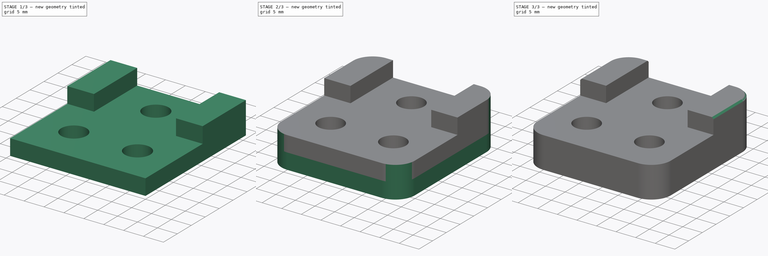
[diagram: build sequence overview — one tinted view per stage of 3, left to right]
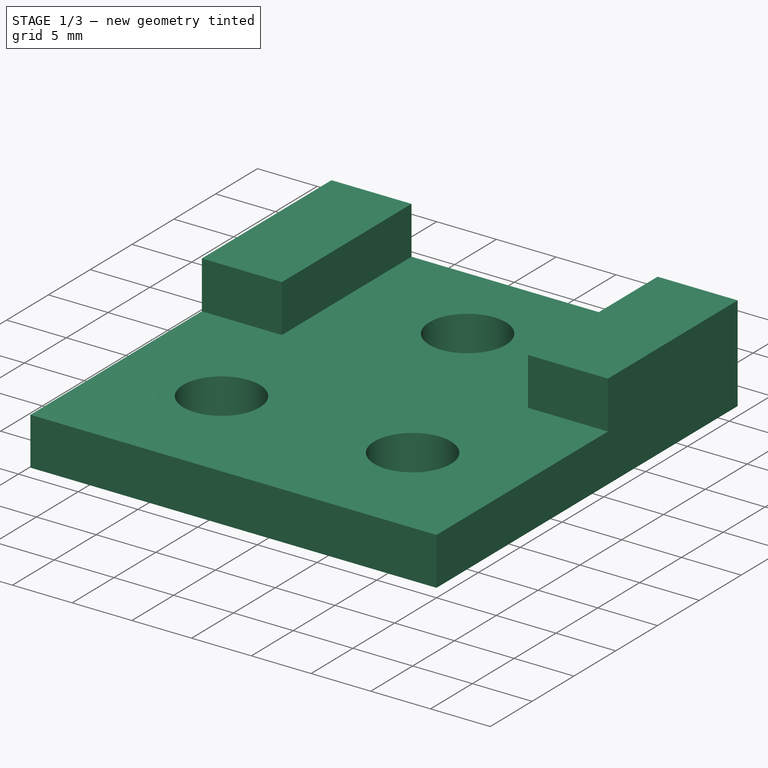
[diagram: stage 1 of 3 — iso view after this stage's code; geometry added in this stage tinted green]
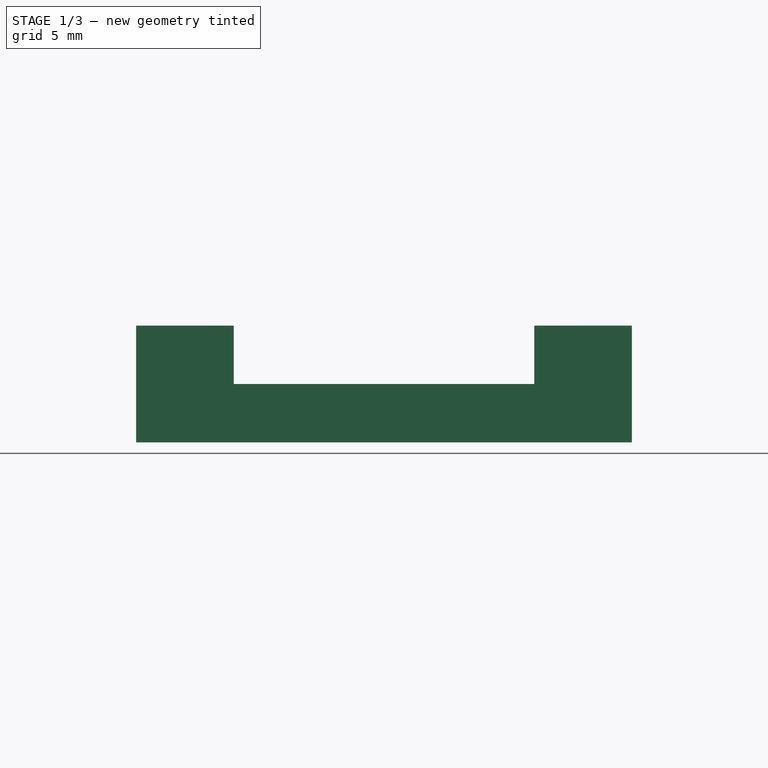
[diagram: stage 1 of 3 — front view after this stage's code; geometry added in this stage tinted green]
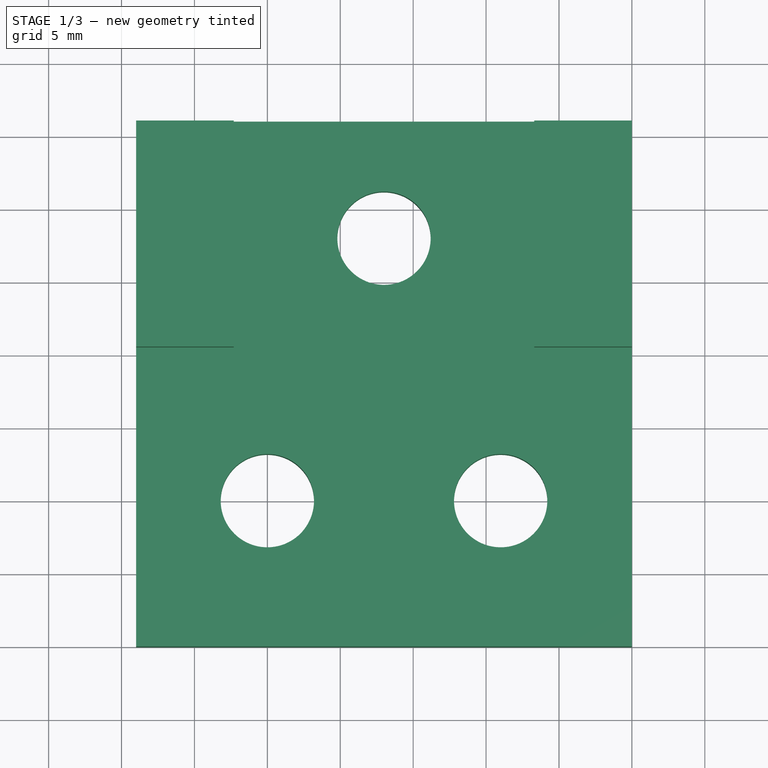
[diagram: stage 1 of 3 — top view after this stage's code; geometry added in this stage tinted green]
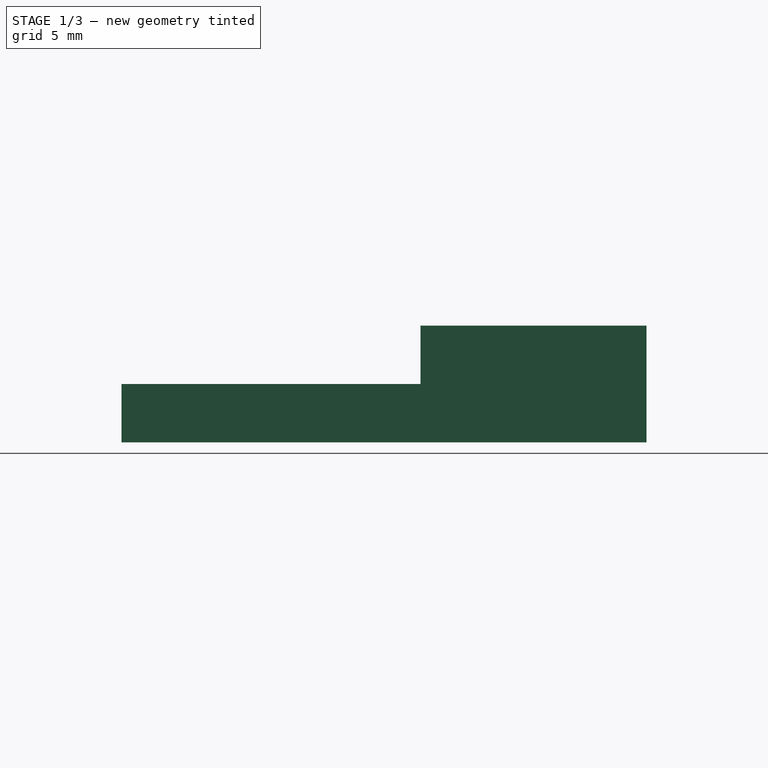
[diagram: stage 1 of 3 — right view after this stage's code; geometry added in this stage tinted green]
FCSTD DOCUMENT  (FreeCAD 0.16R5861 (Git))
Label: bed_mount_table_v3.1
License: CC-BY 3.0
LicenseURL: http://creativecommons.org/licenses/by/3.0/
objects: Sketcher::SketchObject×5, PartDesign::Pad×4, PartDesign::Fillet×1, PartDesign::Pocket×1, PartDesign::Chamfer×1
note: 17 computed .brp shape members not serialized (recipe doc carries the construction recipe); baked Part::Feature solids carry a one-line shape summary decoded from their .brp

FEATURE [Sketcher::SketchObject] Sketch
  sketch-geometry (8):
    g0: LineSegment StartX=0 StartY=0 StartZ=0 EndX=-34 EndY=0 EndZ=0
    g1: LineSegment StartX=-34 StartY=0 StartZ=0 EndX=-34 EndY=36 EndZ=0
    g2: LineSegment StartX=-34 StartY=36 StartZ=0 EndX=0 EndY=36 EndZ=0
    g3: LineSegment StartX=0 StartY=36 StartZ=0 EndX=0 EndY=0 EndZ=0
    g4: Circle CenterX=-17 CenterY=28 CenterZ=0 NormalX=0 NormalY=0 NormalZ=1 Radius=3.2
    g5: Circle CenterX=-25 CenterY=10 CenterZ=0 NormalX=0 NormalY=0 NormalZ=1 Radius=3.2
    g6: Circle CenterX=-9 CenterY=10 CenterZ=0 NormalX=0 NormalY=0 NormalZ=1 Radius=3.2
    g7: LineSegment [constr] StartX=-25 StartY=10 StartZ=0 EndX=-9 EndY=10 EndZ=0
  constraints (22):
    c: Coincident(g0,g1)
    c: Coincident(g1,g2)
    c: Coincident(g2,g3)
    c: Coincident(g3,g0)
    c: Horizontal(g0)
    c: Horizontal(g2)
    c: Vertical(g1)
    c: Vertical(g3)
    c: Coincident(g0,g-1)
    c: Equal(g5,g6)
    c: Equal(g6,g4)
    c: DistanceY(g-1,g2) = 36
    c: DistanceX(g-1,g0) = -34
    c: DistanceX(g-1,g6) = -9
    c: DistanceX(g6,g5) = -16
    c: DistanceX(g4,g2) = 17
    c: Radius(g4) = 3.2
    c: DistanceY(g-1,g4) = 28
    c: Coincident(g7,g5)
    c: Coincident(g7,g6)
    c: Horizontal(g7)
    c: DistanceY(g5,g0) = -10
FEATURE [PartDesign::Pad] Pad
  Length = 4
  Length2 = 100
  Sketch = -> Sketch
  Type = 0
FEATURE [Sketcher::SketchObject] Sketch001
  ExternalGeometry = -> [Pad]
  Placement = pos=(0,0,4) rot=(0,0,1;0rad)
  Support = -> Pad [Face9]
  sketch-geometry (8):
    g0: LineSegment StartX=-34 StartY=36 StartZ=0 EndX=-27.3 EndY=36 EndZ=0
    g1: LineSegment StartX=-27.3 StartY=36 StartZ=0 EndX=-27.3 EndY=20.5 EndZ=0
    g2: LineSegment StartX=-27.3 StartY=20.5 StartZ=0 EndX=-34 EndY=20.5 EndZ=0
    g3: LineSegment StartX=-34 StartY=20.5 StartZ=0 EndX=-34 EndY=36 EndZ=0
    g4: LineSegment StartX=0 StartY=36 StartZ=0 EndX=-6.7 EndY=36 EndZ=0
    g5: LineSegment StartX=-6.7 StartY=36 StartZ=0 EndX=-6.7 EndY=20.5 EndZ=0
    g6: LineSegment StartX=-6.7 StartY=20.5 StartZ=0 EndX=0 EndY=20.5 EndZ=0
    g7: LineSegment StartX=0 StartY=20.5 StartZ=0 EndX=0 EndY=36 EndZ=0
  constraints (22):
    c: Coincident(g0,g1)
    c: Coincident(g1,g2)
    c: Coincident(g2,g3)
    c: Coincident(g3,g0)
    c: Horizontal(g0)
    c: Horizontal(g2)
    c: Vertical(g1)
    c: Vertical(g3)
    c: Coincident(g0,g-3)
    c: Coincident(g4,g5)
    c: Coincident(g5,g6)
    c: Coincident(g6,g7)
    c: Coincident(g7,g4)
    c: Horizontal(g4)
    c: Horizontal(g6)
    c: Vertical(g5)
    c: Vertical(g7)
    c: Coincident(g4,g-3)
    c: DistanceY(g-1,g6) = 20.5
    c: DistanceX(g4,g4) = 6.7
    c: Equal(g2,g6)
    c: PointOnObject(g5,g2)
FEATURE [PartDesign::Pad] Pad001
  Length = 4
  Length2 = 100
  Sketch = -> Sketch001
  Type = 0
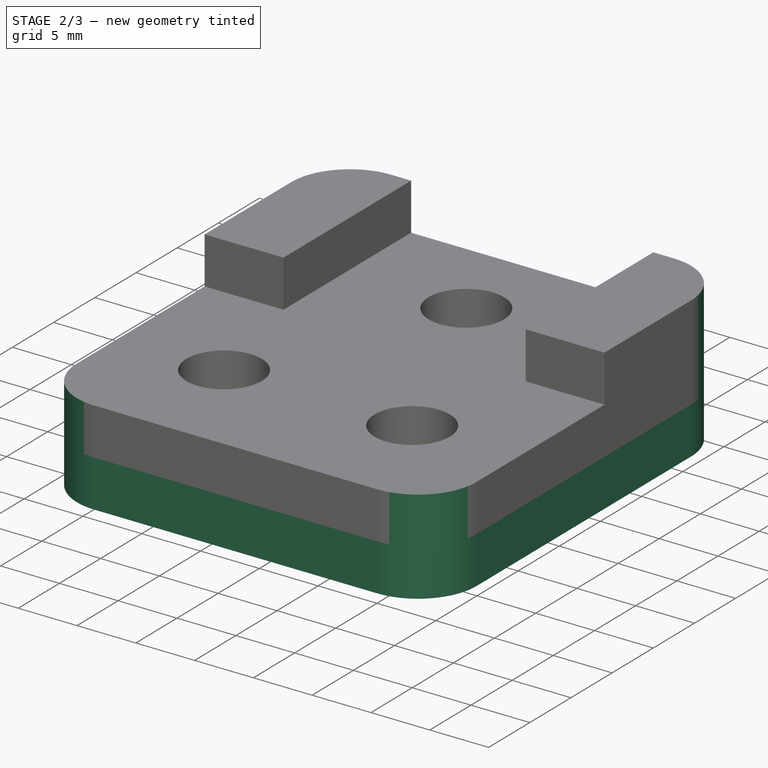
[diagram: stage 2 of 3 — iso view after this stage's code; geometry added in this stage tinted green]
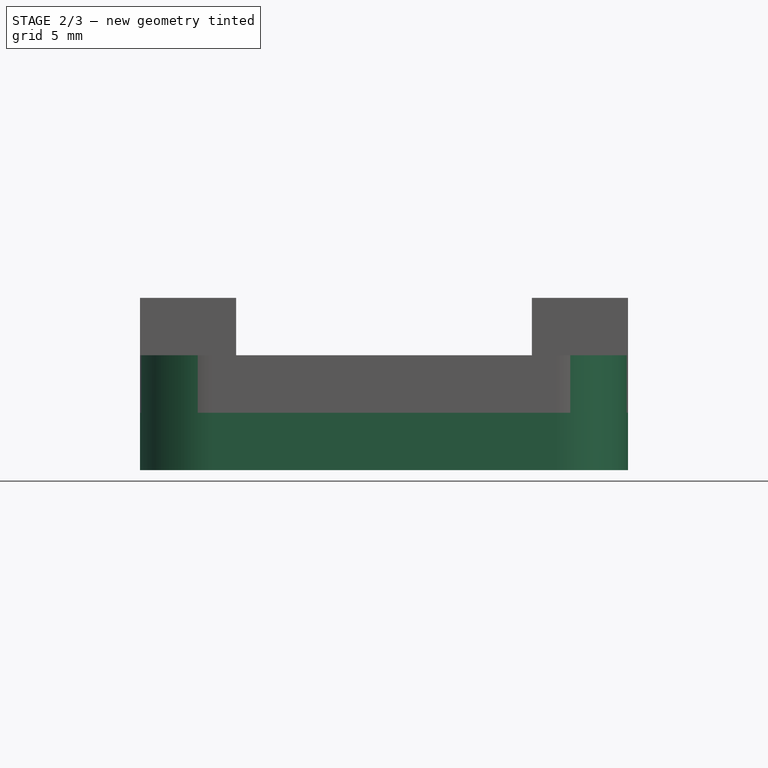
[diagram: stage 2 of 3 — front view after this stage's code; geometry added in this stage tinted green]
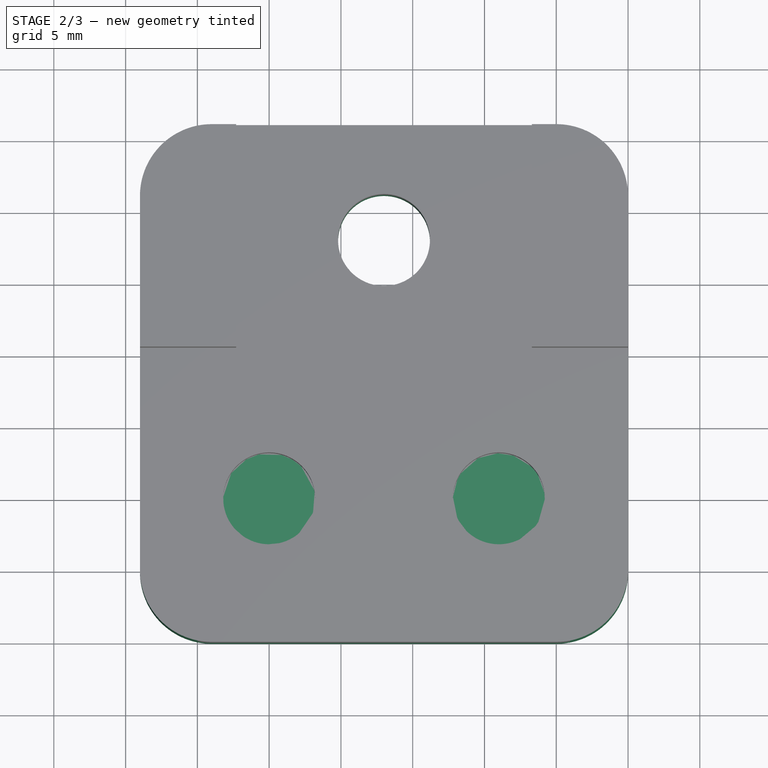
[diagram: stage 2 of 3 — top view after this stage's code; geometry added in this stage tinted green]
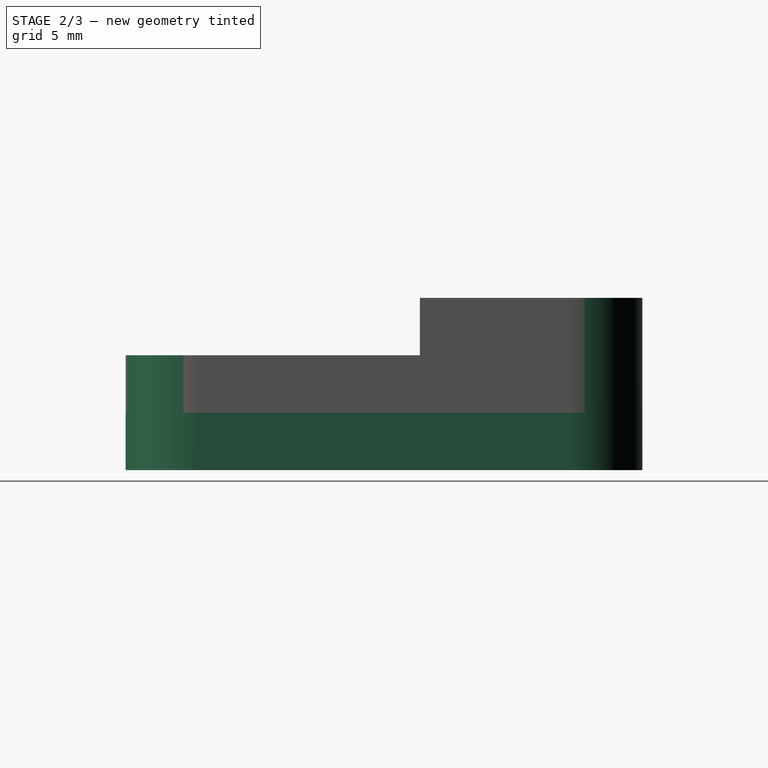
[diagram: stage 2 of 3 — right view after this stage's code; geometry added in this stage tinted green]
FEATURE [PartDesign::Fillet] Fillet
  Base = -> Pad001 [Edge2,Edge1,Edge5,Edge29,Edge32,Edge11]
  Radius = 5
FEATURE [Sketcher::SketchObject] Sketch002
  ExternalGeometry = -> [Fillet]
  Placement = pos=(0,0,0) rot=(1,0,0;3.14159rad)
  Support = -> Fillet [Face2]
  sketch-geometry (11):
    g0: LineSegment StartX=-5 StartY=0 StartZ=0 EndX=-29 EndY=0 EndZ=0
    g1: LineSegment StartX=-34 StartY=-5 StartZ=0 EndX=-34 EndY=-31 EndZ=0
    g2: LineSegment StartX=-29 StartY=-36 StartZ=0 EndX=-5 EndY=-36 EndZ=0
    g3: LineSegment StartX=0 StartY=-31 StartZ=0 EndX=0 EndY=-5 EndZ=0
    g4: ArcOfCircle CenterX=-5 CenterY=-5 CenterZ=0 NormalX=0 NormalY=0 NormalZ=1 Radius=5 StartAngle=0 EndAngle=1.5708
    g5: ArcOfCircle CenterX=-29 CenterY=-5 CenterZ=0 NormalX=0 NormalY=0 NormalZ=1 Radius=5 StartAngle=1.5708 EndAngle=3.14159
    g6: ArcOfCircle CenterX=-29 CenterY=-31 CenterZ=0 NormalX=0 NormalY=0 NormalZ=1 Radius=5 StartAngle=3.14159 EndAngle=4.71239
    g7: ArcOfCircle CenterX=-5 CenterY=-31 CenterZ=0 NormalX=0 NormalY=0 NormalZ=1 Radius=5 StartAngle=4.71239 EndAngle=6.28319
    g8: Circle CenterX=-17 CenterY=-28 CenterZ=0 NormalX=0 NormalY=0 NormalZ=1 Radius=3.2
    g9: Circle CenterX=-25 CenterY=-10 CenterZ=0 NormalX=0 NormalY=0 NormalZ=1 Radius=6
    g10: Circle CenterX=-9 CenterY=-10 CenterZ=0 NormalX=0 NormalY=0 NormalZ=1 Radius=6
  constraints (26):
    c: Horizontal(g0)
    c: Horizontal(g2)
    c: Vertical(g1)
    c: Vertical(g3)
    c: Tangent(g3,g4)
    c: Tangent(g0,g4)
    c: Tangent(g0,g5)
    c: Tangent(g1,g5)
    c: Tangent(g1,g6)
    c: Tangent(g2,g6)
    c: Tangent(g2,g7)
    c: Tangent(g3,g7)
    c: Equal(g5,g6)
    c: Equal(g6,g7)
    c: Equal(g7,g4)
    c: PointOnObject(g-1,g0)
    c: PointOnObject(g-1,g3)
    c: Radius(g5) = 5
    c: DistanceX(g1,g3) = 34
    c: DistanceY(g0,g2) = -36
    c: Coincident(g8,g-5)
    c: Coincident(g9,g-3)
    c: Coincident(g10,g-4)
    c: Equal(g9,g10)
    c: Equal(g-5,g8)
    c: Radius(g9) = 6
FEATURE [PartDesign::Pad] Pad002
  Length = 4
  Length2 = 100
  Sketch = -> Sketch002
  Type = 0
FEATURE [Sketcher::SketchObject] Sketch003
  ExternalGeometry = -> [Pad002]
  Placement = pos=(0,0,0) rot=(1,0,0;3.14159rad)
  Support = -> Pad002 [Face30]
  sketch-geometry (2):
    g0: Circle CenterX=-25 CenterY=-10 CenterZ=0 NormalX=0 NormalY=0 NormalZ=1 Radius=3.2
    g1: Circle CenterX=-9 CenterY=-10 CenterZ=0 NormalX=0 NormalY=0 NormalZ=1 Radius=3.2
  constraints (4):
    c: Coincident(g0,g-3)
    c: Coincident(g1,g-4)
    c: Equal(g1,g0)
    c: Equal(g0,g-4)
FEATURE [PartDesign::Pad] Pad003
  Length = 0.6
  Length2 = 100
  Reversed = true
  Sketch = -> Sketch003
  Type = 0
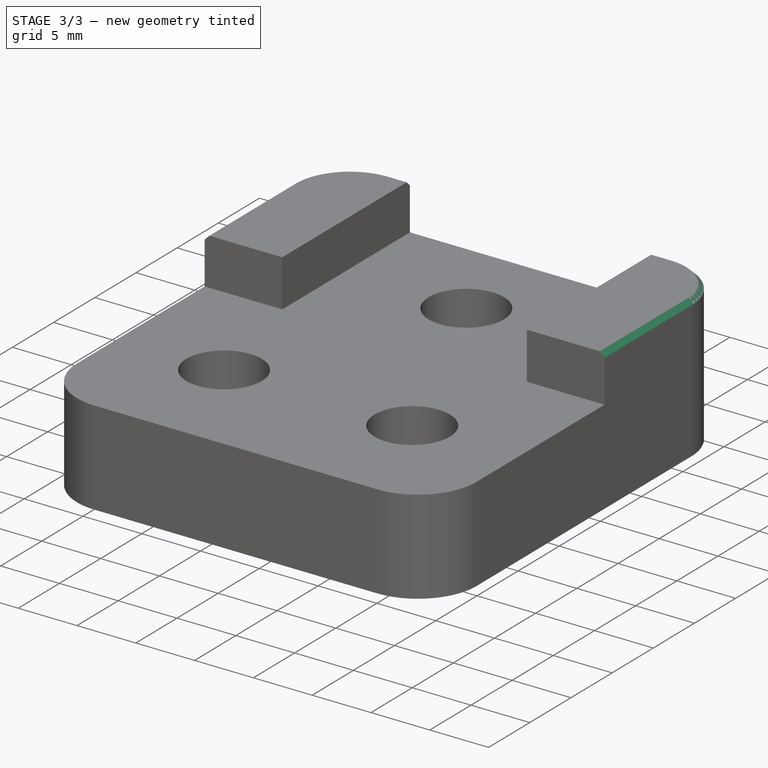
[diagram: stage 3 of 3 — iso view after this stage's code; geometry added in this stage tinted green]
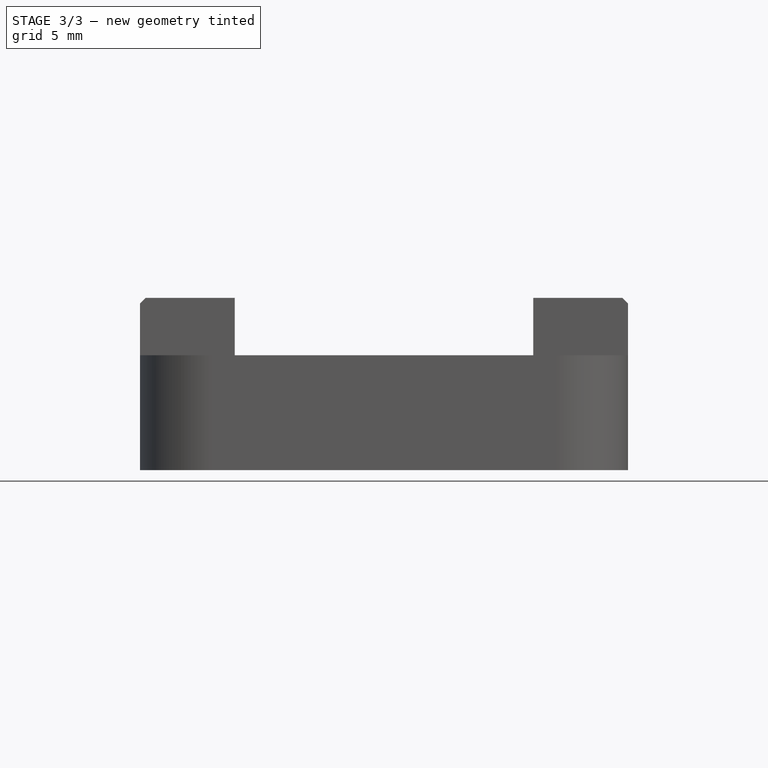
[diagram: stage 3 of 3 — front view after this stage's code; geometry added in this stage tinted green]
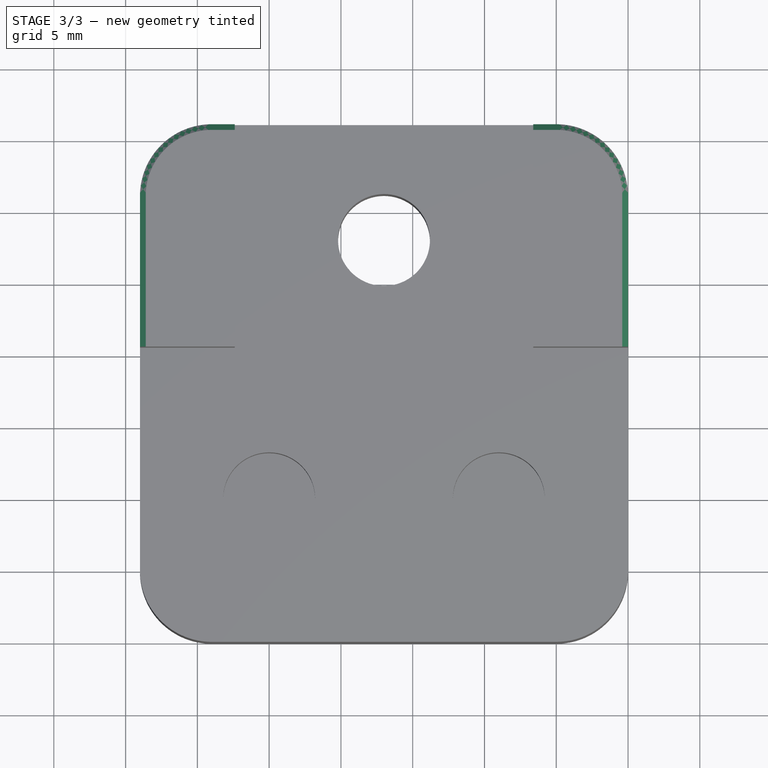
[diagram: stage 3 of 3 — top view after this stage's code; geometry added in this stage tinted green]
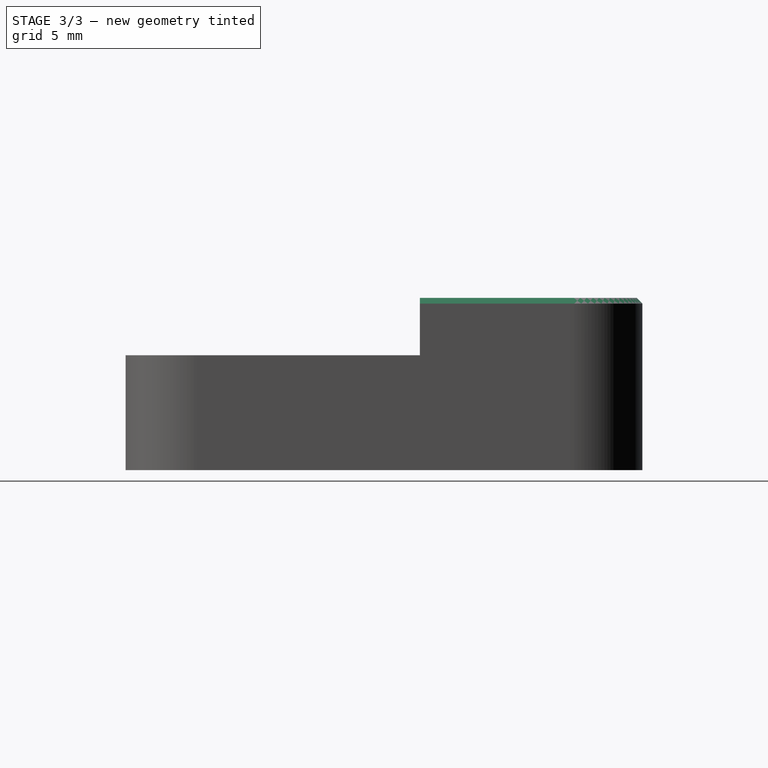
[diagram: stage 3 of 3 — right view after this stage's code; geometry added in this stage tinted green]
FEATURE [Sketcher::SketchObject] Sketch004
  ExternalGeometry = -> [Pad003]
  Placement = pos=(0,0,4) rot=(0,0,1;0rad)
  Support = -> Pad003 [Face1]
  sketch-geometry (4):
    g0: LineSegment StartX=-27.4 StartY=37.9554 StartZ=0 EndX=-6.6 EndY=37.9554 EndZ=0
    g1: LineSegment StartX=-6.6 StartY=37.9554 StartZ=0 EndX=-6.6 EndY=18.3361 EndZ=0
    g2: LineSegment StartX=-6.6 StartY=18.3361 StartZ=0 EndX=-27.4 EndY=18.3361 EndZ=0
    g3: LineSegment StartX=-27.4 StartY=18.3361 StartZ=0 EndX=-27.4 EndY=37.9554 EndZ=0
  constraints (10):
    c: Coincident(g0,g1)
    c: Coincident(g1,g2)
    c: Coincident(g2,g3)
    c: Coincident(g3,g0)
    c: Horizontal(g0)
    c: Horizontal(g2)
    c: Vertical(g1)
    c: Vertical(g3)
    c: DistanceX(g0,g-3) = 0.1
    c: DistanceX(g0,g-4) = -0.1
FEATURE [PartDesign::Pocket] Pocket
  Length = 0
  Sketch = -> Sketch004
  Type = 3
  UpToFace = -> Pad003 [Face25]
FEATURE [PartDesign::Chamfer] Chamfer
  Base = -> Pocket [Edge69,Edge72,Edge70,Edge54,Edge56,Edge53]
  Size = 0.4
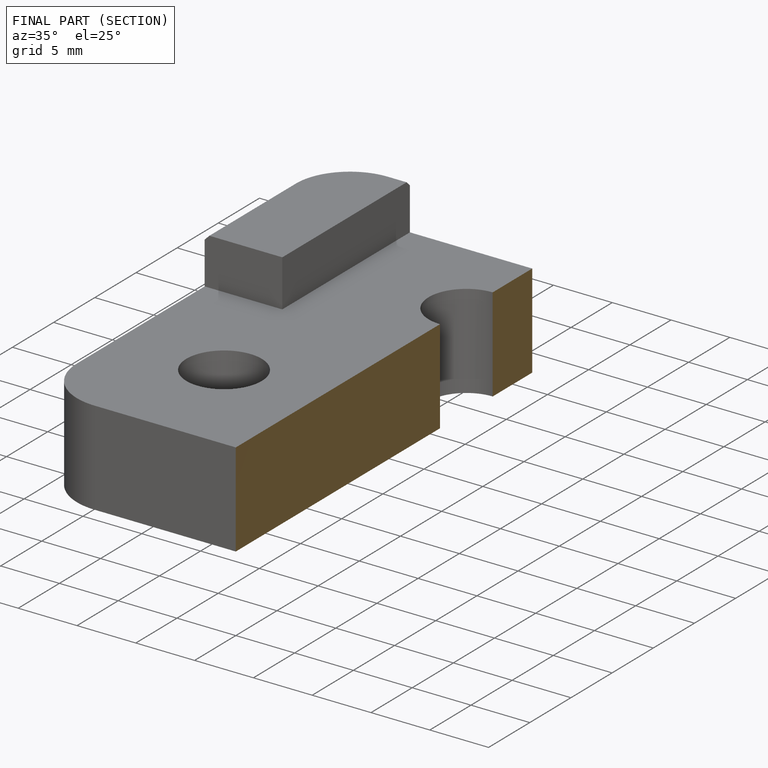
[diagram: finished part — half-section view (interior)]
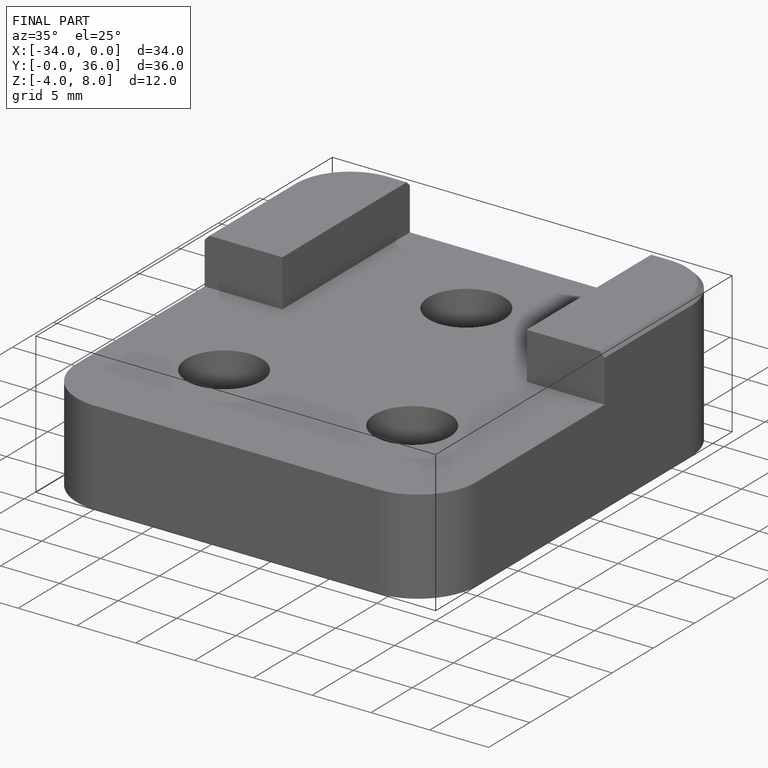
[diagram: finished part — iso view with bounding-box wireframe]
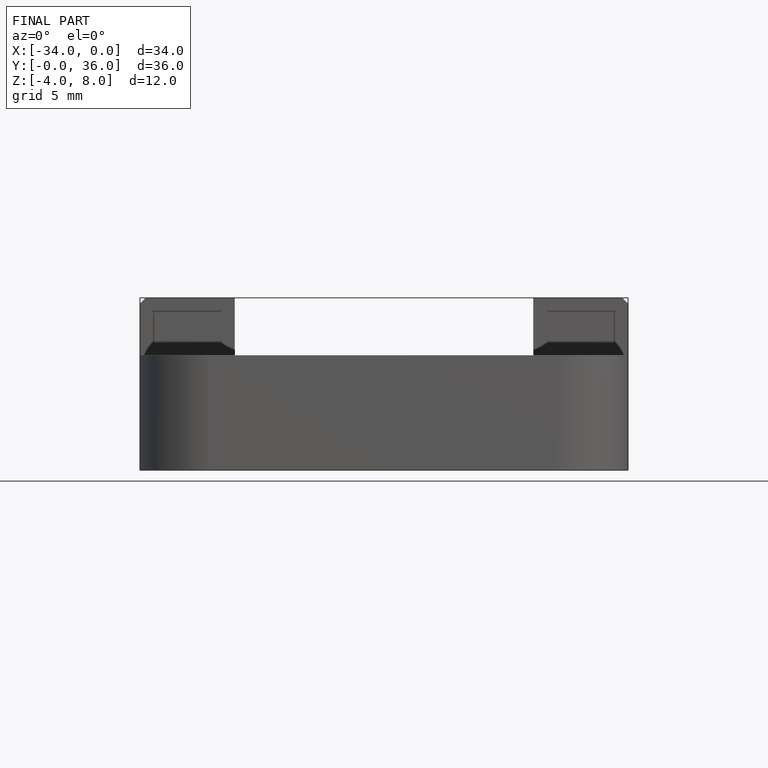
[diagram: finished part — front view with bounding-box wireframe]
